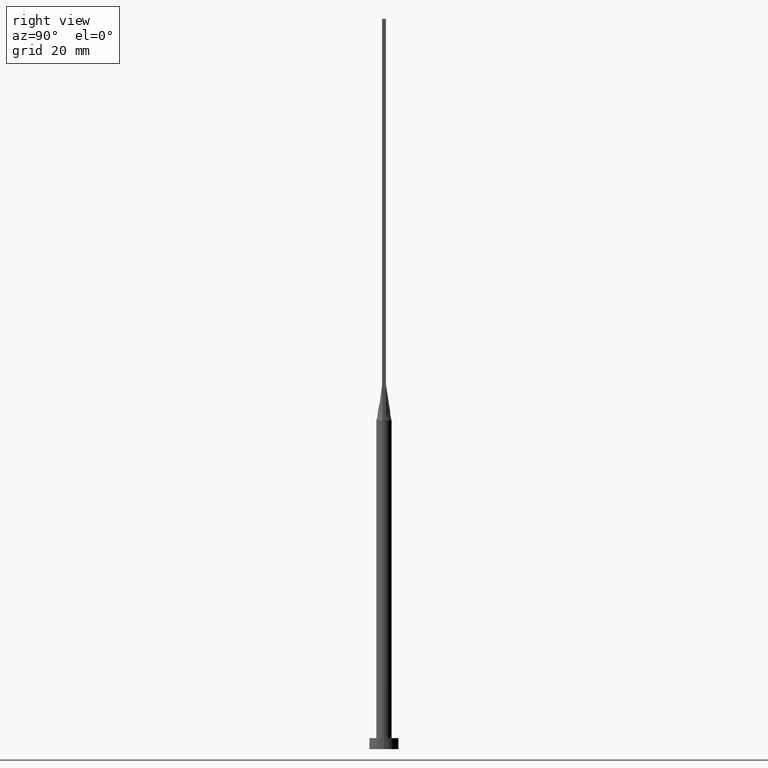
[diagram: clean part render]
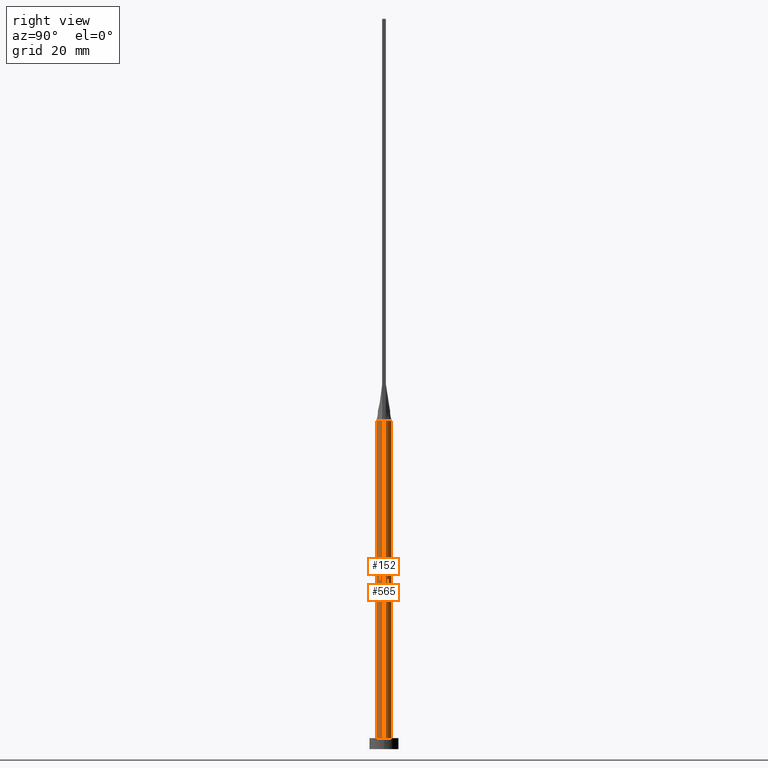
[diagram: same view with one multi-face feature highlighted, each face labeled with its STEP entity id]
A machine part, right view. The highlighted faces form ONE feature: a constant-radius fillet chain: 2 tangent blend faces with common blend radius 2.1 mm. The faces share edges in the B-rep.
Their STEP definitions:
[1] entity #152 (Cylinder):
#7 = EDGE_CURVE ( 'NONE', #370, #446, #110, .T. ) ;
#29 = FACE_OUTER_BOUND ( 'NONE', #410, .T. ) ;
#50 = ORIENTED_EDGE ( 'NONE', *, *, #236, .F. ) ;
#55 = CARTESIAN_POINT ( 'NONE',  ( 0.000000000000000000, 0.000000000000000000, 3.000000000000000000 ) ) ;
#58 = LINE ( 'NONE', #60, #543 ) ;
#60 = CARTESIAN_POINT ( 'NONE',  ( -2.100000000000000089, 0.000000000000000000, 90.00000000000000000 ) ) ;
#62 = VERTEX_POINT ( 'NONE', #426 ) ;
#75 = DIRECTION ( 'NONE',  ( 1.000000000000000000, 0.000000000000000000, 0.000000000000000000 ) ) ;
#79 = LINE ( 'NONE', #125, #84 ) ;
#81 = ORIENTED_EDGE ( 'NONE', *, *, #544, .T. ) ;
#82 = DIRECTION ( 'NONE',  ( -0.000000000000000000, -0.000000000000000000, -1.000000000000000000 ) ) ;
#84 = VECTOR ( 'NONE', #82, 1000.000000000000000 ) ;
#91 = AXIS2_PLACEMENT_3D ( 'NONE', #209, #485, #161 ) ;
#110 = CIRCLE ( 'NONE', #315, 2.100000000000000089 ) ;
#115 = DIRECTION ( 'NONE',  ( 1.000000000000000000, 0.000000000000000000, 0.000000000000000000 ) ) ;
#125 = CARTESIAN_POINT ( 'NONE',  ( 2.100000000000000089, 2.571758278209441957E-16, 90.00000000000000000 ) ) ;
#127 = CARTESIAN_POINT ( 'NONE',  ( -2.031004407172260162, -0.5344754071304557153, 90.00000000000000000 ) ) ;
#152 = ADVANCED_FACE ( 'NONE', ( #29 ), #306, .T. ) ;
#161 = DIRECTION ( 'NONE',  ( -1.000000000000000000, 0.000000000000000000, 0.000000000000000000 ) ) ;
#176 = ORIENTED_EDGE ( 'NONE', *, *, #7, .F. ) ;
#185 = CARTESIAN_POINT ( 'NONE',  ( 0.000000000000000000, 0.000000000000000000, 90.00000000000000000 ) ) ;
#189 = CIRCLE ( 'NONE', #488, 2.100000000000000089 ) ;
#199 = EDGE_CURVE ( 'NONE', #446, #241, #208, .T. ) ;
#208 = CIRCLE ( 'NONE', #498, 2.100000000000000089 ) ;
#209 = CARTESIAN_POINT ( 'NONE',  ( 0.000000000000000000, 0.000000000000000000, 90.00000000000000000 ) ) ;
#229 = DIRECTION ( 'NONE',  ( 0.000000000000000000, 0.000000000000000000, 1.000000000000000000 ) ) ;
#236 = EDGE_CURVE ( 'NONE', #241, #367, #79, .T. ) ;
#241 = VERTEX_POINT ( 'NONE', #255 ) ;
#253 = CARTESIAN_POINT ( 'NONE',  ( 0.000000000000000000, 0.000000000000000000, 90.00000000000000000 ) ) ;
#255 = CARTESIAN_POINT ( 'NONE',  ( 2.100000000000000089, 3.372022381799045987E-17, 90.00000000000000000 ) ) ;
#274 = ORIENTED_EDGE ( 'NONE', *, *, #469, .T. ) ;
#289 = DIRECTION ( 'NONE',  ( -0.000000000000000000, -0.000000000000000000, -1.000000000000000000 ) ) ;
#306 = CYLINDRICAL_SURFACE ( 'NONE', #91, 2.100000000000000089 ) ;
#315 = AXIS2_PLACEMENT_3D ( 'NONE', #337, #472, #115 ) ;
#322 = ORIENTED_EDGE ( 'NONE', *, *, #199, .F. ) ;
#328 = CARTESIAN_POINT ( 'NONE',  ( 2.031027953490633031, -0.5344816358097418396, 90.00000000000000000 ) ) ;
#337 = CARTESIAN_POINT ( 'NONE',  ( 0.000000000000000000, 0.000000000000000000, 90.00000000000000000 ) ) ;
#360 = CARTESIAN_POINT ( 'NONE',  ( 2.100000000000000089, 2.571758278209441957E-16, 3.000000000000000000 ) ) ;
#367 = VERTEX_POINT ( 'NONE', #360 ) ;
#370 = VERTEX_POINT ( 'NONE', #127 ) ;
#372 = DIRECTION ( 'NONE',  ( 0.000000000000000000, 0.000000000000000000, 1.000000000000000000 ) ) ;
#398 = AXIS2_PLACEMENT_3D ( 'NONE', #185, #372, #75 ) ;
#410 = EDGE_LOOP ( 'NONE', ( #50, #322, #176, #465, #274, #81 ) ) ;
#412 = DIRECTION ( 'NONE',  ( 1.000000000000000000, 0.000000000000000000, 0.000000000000000000 ) ) ;
#426 = CARTESIAN_POINT ( 'NONE',  ( -2.100000000000000089, 0.000000000000000000, 3.000000000000000000 ) ) ;
#434 = DIRECTION ( 'NONE',  ( 0.000000000000000000, 0.000000000000000000, 1.000000000000000000 ) ) ;
#446 = VERTEX_POINT ( 'NONE', #328 ) ;
#455 = VERTEX_POINT ( 'NONE', #506 ) ;
#465 = ORIENTED_EDGE ( 'NONE', *, *, #557, .F. ) ;
#469 = EDGE_CURVE ( 'NONE', #455, #62, #58, .T. ) ;
#472 = DIRECTION ( 'NONE',  ( 0.000000000000000000, 0.000000000000000000, 1.000000000000000000 ) ) ;
#485 = DIRECTION ( 'NONE',  ( -0.000000000000000000, -0.000000000000000000, -1.000000000000000000 ) ) ;
#488 = AXIS2_PLACEMENT_3D ( 'NONE', #55, #229, #412 ) ;
#498 = AXIS2_PLACEMENT_3D ( 'NONE', #253, #434, #576 ) ;
#506 = CARTESIAN_POINT ( 'NONE',  ( -2.100000000000000089, -1.080980291041873360E-16, 90.00000000000000000 ) ) ;
#543 = VECTOR ( 'NONE', #289, 1000.000000000000000 ) ;
#544 = EDGE_CURVE ( 'NONE', #62, #367, #189, .T. ) ;
#557 = EDGE_CURVE ( 'NONE', #455, #370, #577, .T. ) ;
#576 = DIRECTION ( 'NONE',  ( 1.000000000000000000, 4.440892098500626951E-15, 0.000000000000000000 ) ) ;
#577 = CIRCLE ( 'NONE', #398, 2.100000000000000089 ) ;
[2] entity #565 (Cylinder):
#3 = CARTESIAN_POINT ( 'NONE',  ( 0.000000000000000000, 0.000000000000000000, 3.000000000000000000 ) ) ;
#13 = EDGE_LOOP ( 'NONE', ( #196, #497, #323, #231, #404, #548 ) ) ;
#24 = FACE_OUTER_BOUND ( 'NONE', #13, .T. ) ;
#25 = CARTESIAN_POINT ( 'NONE',  ( 0.2698109971861041290, 2.100000000000000089, 90.00000000000000000 ) ) ;
#32 = EDGE_CURVE ( 'NONE', #406, #455, #438, .T. ) ;
#58 = LINE ( 'NONE', #60, #543 ) ;
#60 = CARTESIAN_POINT ( 'NONE',  ( -2.100000000000000089, 0.000000000000000000, 90.00000000000000000 ) ) ;
#61 = EDGE_CURVE ( 'NONE', #501, #406, #478, .T. ) ;
#62 = VERTEX_POINT ( 'NONE', #426 ) ;
#68 = CARTESIAN_POINT ( 'NONE',  ( -1.987786580065029174, 0.6981017315960602598, 90.00000000000000000 ) ) ;
#72 = CARTESIAN_POINT ( 'NONE',  ( 1.920830191244603746, 0.8725264301372623876, 90.00000000000000000 ) ) ;
#79 = LINE ( 'NONE', #125, #84 ) ;
#82 = DIRECTION ( 'NONE',  ( -0.000000000000000000, -0.000000000000000000, -1.000000000000000000 ) ) ;
#83 = AXIS2_PLACEMENT_3D ( 'NONE', #243, #518, #341 ) ;
#84 = VECTOR ( 'NONE', #82, 1000.000000000000000 ) ;
#93 = EDGE_CURVE ( 'NONE', #241, #501, #330, .T. ) ;
#96 = DIRECTION ( 'NONE',  ( 1.000000000000000000, 0.000000000000000000, 0.000000000000000000 ) ) ;
#108 = CARTESIAN_POINT ( 'NONE',  ( 0.000000000000000000, 0.000000000000000000, 90.00000000000000000 ) ) ;
#125 = CARTESIAN_POINT ( 'NONE',  ( 2.100000000000000089, 2.571758278209441957E-16, 90.00000000000000000 ) ) ;
#128 = AXIS2_PLACEMENT_3D ( 'NONE', #482, #162, #430 ) ;
#162 = DIRECTION ( 'NONE',  ( -0.000000000000000000, -0.000000000000000000, -1.000000000000000000 ) ) ;
#194 = CARTESIAN_POINT ( 'NONE',  ( -0.2698109971861040179, 2.100000000000000089, 90.00000000000001421 ) ) ;
#196 = ORIENTED_EDGE ( 'NONE', *, *, #93, .F. ) ;
#202 = AXIS2_PLACEMENT_3D ( 'NONE', #3, #218, #96 ) ;
#218 = DIRECTION ( 'NONE',  ( 0.000000000000000000, 0.000000000000000000, 1.000000000000000000 ) ) ;
#231 = ORIENTED_EDGE ( 'NONE', *, *, #469, .F. ) ;
#236 = EDGE_CURVE ( 'NONE', #241, #367, #79, .T. ) ;
#241 = VERTEX_POINT ( 'NONE', #255 ) ;
#243 = CARTESIAN_POINT ( 'NONE',  ( 0.000000000000000000, 0.000000000000000000, 90.00000000000000000 ) ) ;
#246 = CARTESIAN_POINT ( 'NONE',  ( -2.031019593402089818, 0.5344793603115657321, 90.00000000000000000 ) ) ;
#255 = CARTESIAN_POINT ( 'NONE',  ( 2.100000000000000089, 3.372022381799045987E-17, 90.00000000000000000 ) ) ;
#289 = DIRECTION ( 'NONE',  ( -0.000000000000000000, -0.000000000000000000, -1.000000000000000000 ) ) ;
#290 = DIRECTION ( 'NONE',  ( 0.000000000000000000, 0.000000000000000000, 1.000000000000000000 ) ) ;
#293 = CARTESIAN_POINT ( 'NONE',  ( 1.235326090059014614, 1.714395692508636770, 90.00000000000002842 ) ) ;
#296 = CARTESIAN_POINT ( 'NONE',  ( -1.920830191244604412, 0.8725264301372623876, 90.00000000000004263 ) ) ;
#323 = ORIENTED_EDGE ( 'NONE', *, *, #339, .T. ) ;
#324 = CARTESIAN_POINT ( 'NONE',  ( -2.031019593402089818, 0.5344793603115657321, 90.00000000000000000 ) ) ;
#330 = CIRCLE ( 'NONE', #439, 2.100000000000000089 ) ;
#334 = CARTESIAN_POINT ( 'NONE',  ( 1.021961681204346606, 1.852908961101259244, 90.00000000000001421 ) ) ;
#339 = EDGE_CURVE ( 'NONE', #367, #62, #419, .T. ) ;
#341 = DIRECTION ( 'NONE',  ( 1.000000000000000000, 0.000000000000000000, 0.000000000000000000 ) ) ;
#360 = CARTESIAN_POINT ( 'NONE',  ( 2.100000000000000089, 2.571758278209441957E-16, 3.000000000000000000 ) ) ;
#367 = VERTEX_POINT ( 'NONE', #360 ) ;
#385 = CARTESIAN_POINT ( 'NONE',  ( 2.030996101999494652, 0.5344731476277209126, 90.00000000000000000 ) ) ;
#386 = CARTESIAN_POINT ( 'NONE',  ( 1.719043754744862040, 1.223020672007445464, 90.00000000000005684 ) ) ;
#404 = ORIENTED_EDGE ( 'NONE', *, *, #32, .F. ) ;
#406 = VERTEX_POINT ( 'NONE', #324 ) ;
#419 = CIRCLE ( 'NONE', #202, 2.100000000000000089 ) ;
#421 = CARTESIAN_POINT ( 'NONE',  ( 1.583604922800830428, 1.399063468093436624, 90.00000000000000000 ) ) ;
#426 = CARTESIAN_POINT ( 'NONE',  ( -2.100000000000000089, 0.000000000000000000, 3.000000000000000000 ) ) ;
#430 = DIRECTION ( 'NONE',  ( -1.000000000000000000, 0.000000000000000000, 0.000000000000000000 ) ) ;
#438 = CIRCLE ( 'NONE', #83, 2.100000000000000089 ) ;
#439 = AXIS2_PLACEMENT_3D ( 'NONE', #108, #290, #468 ) ;
#455 = VERTEX_POINT ( 'NONE', #506 ) ;
#468 = DIRECTION ( 'NONE',  ( 1.000000000000000000, 0.000000000000000000, 0.000000000000000000 ) ) ;
#469 = EDGE_CURVE ( 'NONE', #455, #62, #58, .T. ) ;
#477 = CARTESIAN_POINT ( 'NONE',  ( 2.030996101999494652, 0.5344731476277209126, 90.00000000000000000 ) ) ;
#478 = B_SPLINE_CURVE_WITH_KNOTS ( 'NONE', 3,
 ( #477, #525, #72, #386, #421, #293, #334, #558, #25, #194, #515, #560, #564, #569, #522, #296, #68, #246 ),
 .UNSPECIFIED., .F., .F.,
 ( 4, 2, 2, 2, 2, 2, 2, 2, 4 ),
 ( 0.000000000000000000, 0.1250000000000000278, 0.2500000000000000555, 0.3750000000000001110, 0.5000000000000000000, 0.6250000000000000000, 0.7500000000000000000, 0.8750000000000001110, 1.000000000000000000 ),
 .UNSPECIFIED. ) ;
#482 = CARTESIAN_POINT ( 'NONE',  ( 0.000000000000000000, 0.000000000000000000, 90.00000000000000000 ) ) ;
#484 = CYLINDRICAL_SURFACE ( 'NONE', #128, 2.100000000000000089 ) ;
#497 = ORIENTED_EDGE ( 'NONE', *, *, #236, .T. ) ;
#501 = VERTEX_POINT ( 'NONE', #385 ) ;
#506 = CARTESIAN_POINT ( 'NONE',  ( -2.100000000000000089, -1.080980291041873360E-16, 90.00000000000000000 ) ) ;
#515 = CARTESIAN_POINT ( 'NONE',  ( -0.5389299406762299016, 2.046272663899431965, 90.00000000000000000 ) ) ;
#518 = DIRECTION ( 'NONE',  ( 0.000000000000000000, 0.000000000000000000, 1.000000000000000000 ) ) ;
#522 = CARTESIAN_POINT ( 'NONE',  ( -1.719043754744861596, 1.223020672007445242, 90.00000000000001421 ) ) ;
#525 = CARTESIAN_POINT ( 'NONE',  ( 1.987786580065029174, 0.6981017315960605929, 90.00000000000001421 ) ) ;
#543 = VECTOR ( 'NONE', #289, 1000.000000000000000 ) ;
#548 = ORIENTED_EDGE ( 'NONE', *, *, #61, .F. ) ;
#558 = CARTESIAN_POINT ( 'NONE',  ( 0.5389299406762297906, 2.046272663899431077, 90.00000000000002842 ) ) ;
#560 = CARTESIAN_POINT ( 'NONE',  ( -1.021961681204346384, 1.852908961101259022, 90.00000000000001421 ) ) ;
#564 = CARTESIAN_POINT ( 'NONE',  ( -1.235326090059014836, 1.714395692508636326, 90.00000000000000000 ) ) ;
#565 = ADVANCED_FACE ( 'NONE', ( #24 ), #484, .T. ) ;
#569 = CARTESIAN_POINT ( 'NONE',  ( -1.583604922800830428, 1.399063468093436402, 89.99999999999998579 ) ) ;